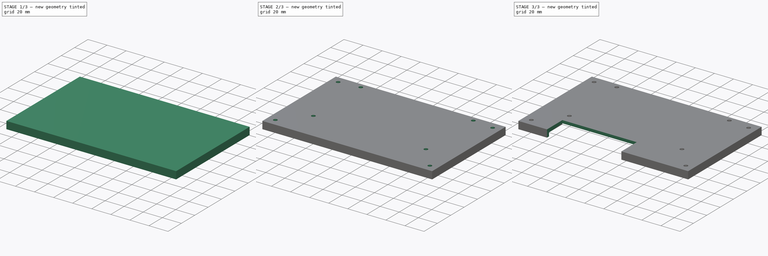
[diagram: build sequence overview — one tinted view per stage of 3, left to right]
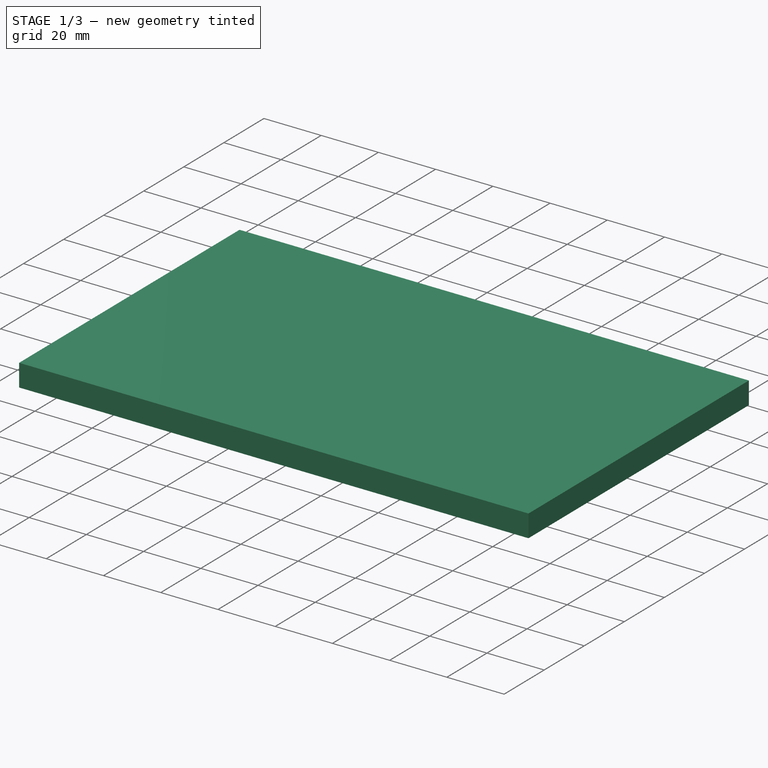
[diagram: stage 1 of 3 — iso view after this stage's code; geometry added in this stage tinted green]
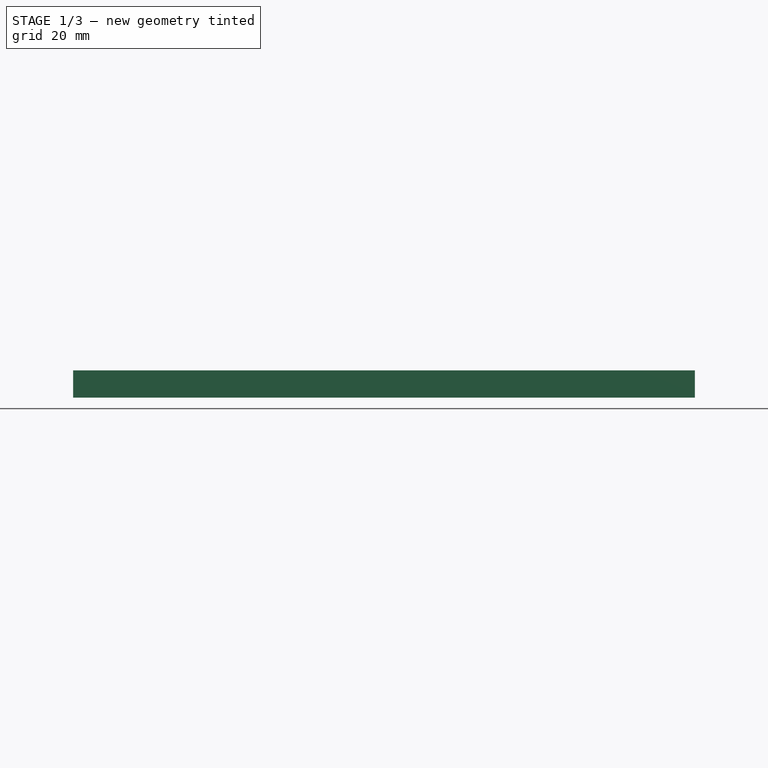
[diagram: stage 1 of 3 — front view after this stage's code; geometry added in this stage tinted green]
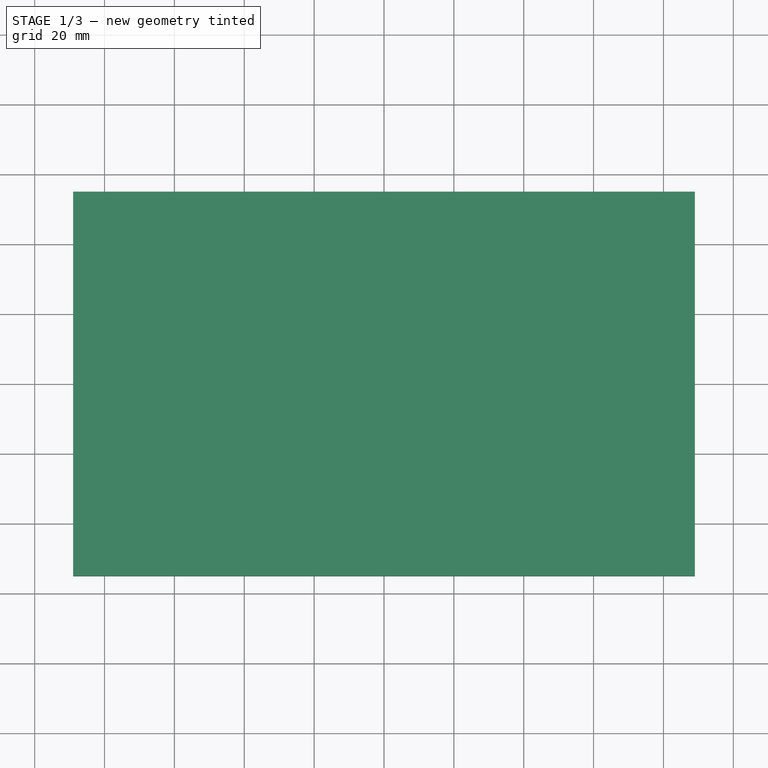
[diagram: stage 1 of 3 — top view after this stage's code; geometry added in this stage tinted green]
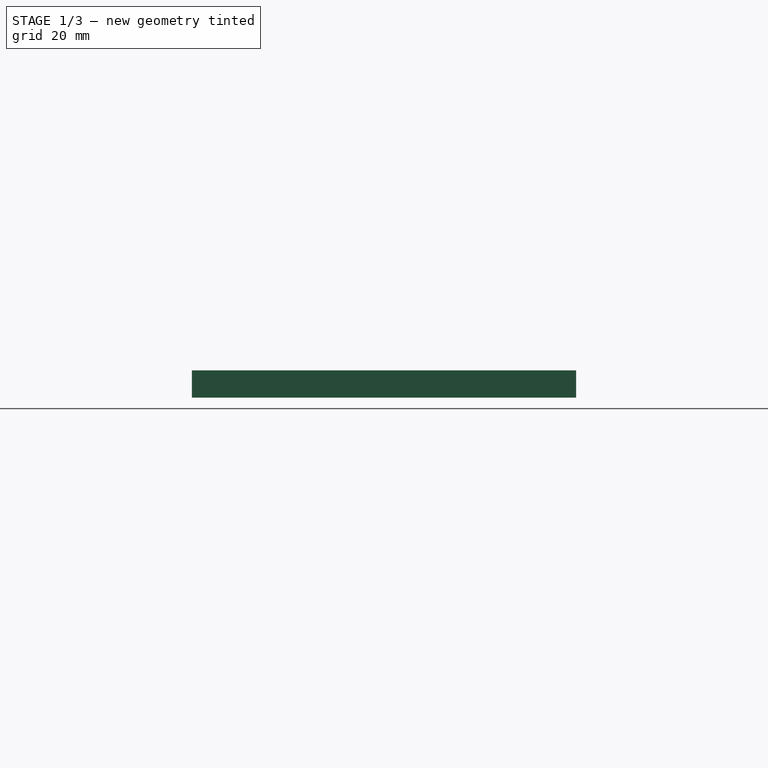
[diagram: stage 1 of 3 — right view after this stage's code; geometry added in this stage tinted green]
FCSTD DOCUMENT  (FreeCAD 0.20R29603 (Git))
Label: screen
License: All rights reserved
LicenseURL: http://en.wikipedia.org/wiki/All_rights_reserved
objects: Sketcher::SketchObject×7, PartDesign::Pocket×4, PartDesign::Pad×2, PartDesign::Body×1
note: 20 computed .brp shape members not serialized (recipe doc carries the construction recipe); baked Part::Feature solids carry a one-line shape summary decoded from their .brp

FEATURE [Sketcher::SketchObject] Sketch
  FullyConstrained = true
  sketch-geometry (8):
    g0: LineSegment StartX=-86 StartY=48 StartZ=0 EndX=82.5 EndY=48 EndZ=0
    g1: LineSegment StartX=82.5 StartY=48 StartZ=0 EndX=82.5 EndY=-52 EndZ=0
    g2: LineSegment StartX=82.5 StartY=-52 StartZ=0 EndX=-86 EndY=-52 EndZ=0
    g3: LineSegment StartX=-86 StartY=-52 StartZ=0 EndX=-86 EndY=48 EndZ=0
    g4: LineSegment StartX=-89 StartY=55 StartZ=0 EndX=89 EndY=55 EndZ=0
    g5: LineSegment StartX=89 StartY=55 StartZ=0 EndX=89 EndY=-55 EndZ=0
    g6: LineSegment StartX=89 StartY=-55 StartZ=0 EndX=-89 EndY=-55 EndZ=0
    g7: LineSegment StartX=-89 StartY=-55 StartZ=0 EndX=-89 EndY=55 EndZ=0
  constraints (23):
    c: Coincident(g0,g1)
    c: Coincident(g2,g3)
    c: Coincident(g3,g0)
    c: Horizontal(g0)
    c: Horizontal(g2)
    c: Vertical(g1)
    c: Vertical(g3)
    c: Coincident(g4,g5)
    c: Coincident(g6,g7)
    c: Coincident(g7,g4)
    c: Horizontal(g4)
    c: Horizontal(g6)
    c: Vertical(g5)
    c: Vertical(g7)
    c: Coincident(g6,g5)
    c: Coincident(g2,g1)
    c: Symmetric(g4,g5,g-1)
    c: DistanceX(g4,g4) = 178
    c: DistanceY(g7,g7) = 110
    c: DistanceY(g6,g2) = 3
    c: DistanceY(g0,g4) = 7
    c: DistanceX(g4,g0) = 3
    c: DistanceX(g0,g4) = 6.5
FEATURE [Sketcher::SketchObject] Sketch001
  FullyConstrained = true
  sketch-geometry (8):
    g0: LineSegment StartX=-86 StartY=48 StartZ=0 EndX=82.5 EndY=48 EndZ=0
    g1: LineSegment StartX=82.5 StartY=48 StartZ=0 EndX=82.5 EndY=-52 EndZ=0
    g2: LineSegment StartX=82.5 StartY=-52 StartZ=0 EndX=-86 EndY=-52 EndZ=0
    g3: LineSegment StartX=-86 StartY=-52 StartZ=0 EndX=-86 EndY=48 EndZ=0
    g4: LineSegment StartX=-89 StartY=55 StartZ=0 EndX=89 EndY=55 EndZ=0
    g5: LineSegment StartX=89 StartY=55 StartZ=0 EndX=89 EndY=-55 EndZ=0
    g6: LineSegment StartX=89 StartY=-55 StartZ=0 EndX=-89 EndY=-55 EndZ=0
    g7: LineSegment StartX=-89 StartY=-55 StartZ=0 EndX=-89 EndY=55 EndZ=0
  constraints (23):
    c: Coincident(g0,g1)
    c: Coincident(g2,g3)
    c: Coincident(g3,g0)
    c: Horizontal(g0)
    c: Horizontal(g2)
    c: Vertical(g1)
    c: Vertical(g3)
    c: Coincident(g4,g5)
    c: Coincident(g6,g7)
    c: Coincident(g7,g4)
    c: Horizontal(g4)
    c: Horizontal(g6)
    c: Vertical(g5)
    c: Vertical(g7)
    c: Coincident(g6,g5)
    c: Coincident(g2,g1)
    c: Symmetric(g4,g5,g-1)
    c: DistanceX(g4,g4) = 178
    c: DistanceY(g7,g7) = 110
    c: DistanceY(g6,g2) = 3
    c: DistanceY(g0,g4) = 7
    c: DistanceX(g4,g0) = 3
    c: DistanceX(g0,g4) = 6.5
FEATURE [PartDesign::Pad] Pad
  Direction = (0,0,1)
  Length = 3.8
  Length2 = 10
  Profile = -> Sketch001
  ReferenceAxis = -> Sketch001 [N_Axis]
  Type = 0
FEATURE [Sketcher::SketchObject] Sketch002
  ExternalGeometry = -> [Pad]
  FullyConstrained = true
  MapMode = 5
  Placement = pos=(0,0,3.8) rot=(0,0,1;0rad)
  Support = -> [Pad]
  sketch-geometry (4):
    g0: LineSegment StartX=-89 StartY=55 StartZ=0 EndX=89 EndY=55 EndZ=0
    g1: LineSegment StartX=89 StartY=55 StartZ=0 EndX=89 EndY=-55 EndZ=0
    g2: LineSegment StartX=89 StartY=-55 StartZ=0 EndX=-89 EndY=-55 EndZ=0
    g3: LineSegment StartX=-89 StartY=-55 StartZ=0 EndX=-89 EndY=55 EndZ=0
  constraints (10):
    c: Coincident(g0,g1)
    c: Coincident(g1,g2)
    c: Coincident(g2,g3)
    c: Coincident(g3,g0)
    c: Horizontal(g0)
    c: Horizontal(g2)
    c: Vertical(g1)
    c: Vertical(g3)
    c: Coincident(g-4,g0)
    c: Coincident(g-6,g1)
FEATURE [PartDesign::Pad] Pad001
  BaseFeature = -> Pad
  Direction = (0,0,1)
  Length = 4
  Length2 = 10
  Profile = -> Sketch002
  ReferenceAxis = -> Sketch002 [N_Axis]
  Type = 0
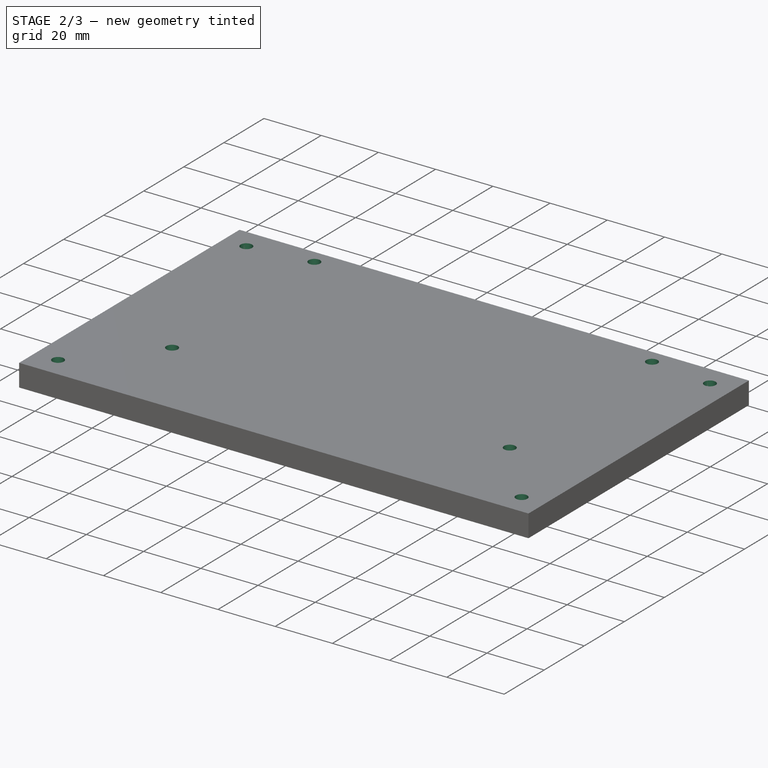
[diagram: stage 2 of 3 — iso view after this stage's code; geometry added in this stage tinted green]
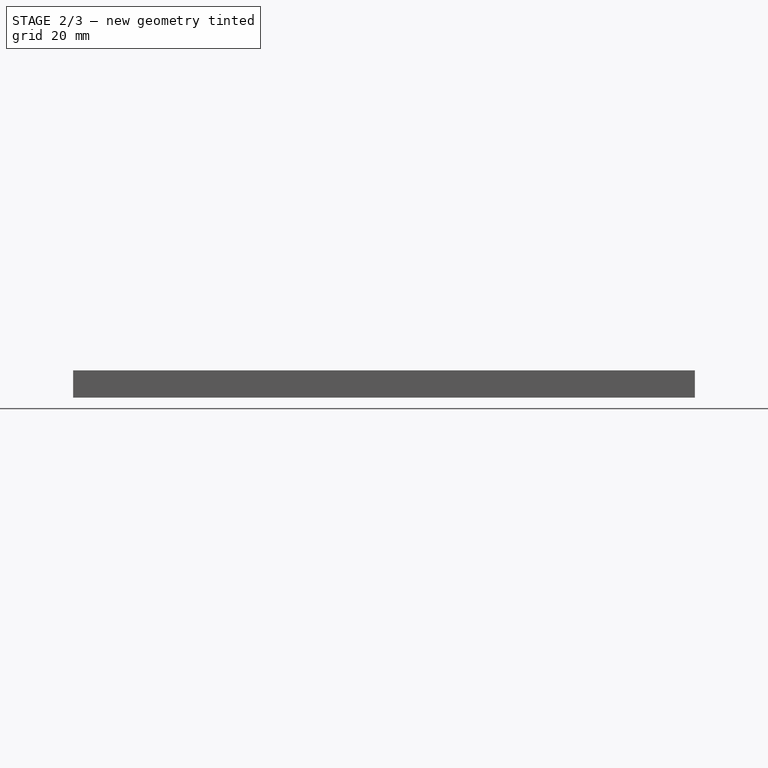
[diagram: stage 2 of 3 — front view after this stage's code; geometry added in this stage tinted green]
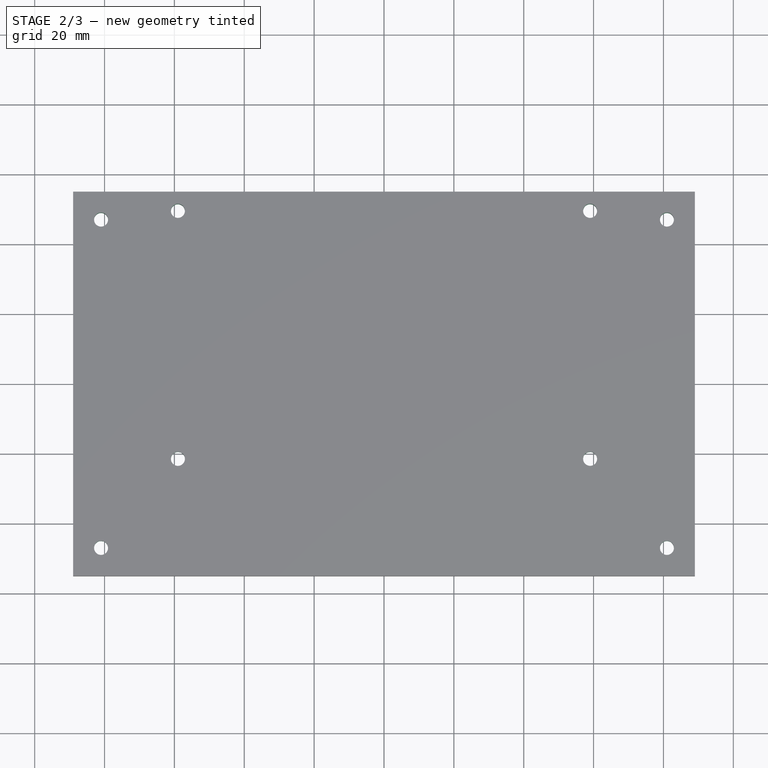
[diagram: stage 2 of 3 — top view after this stage's code; geometry added in this stage tinted green]
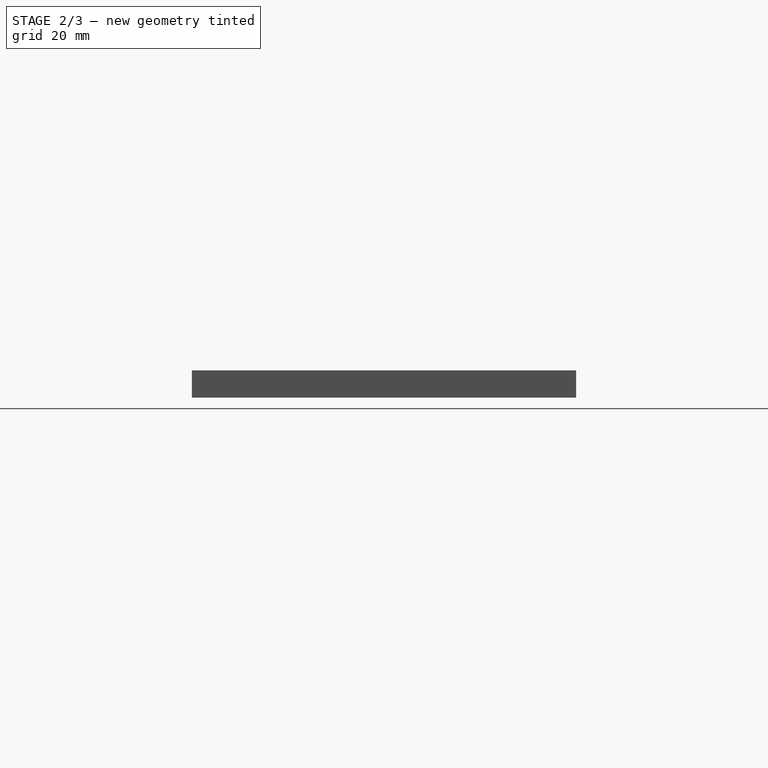
[diagram: stage 2 of 3 — right view after this stage's code; geometry added in this stage tinted green]
FEATURE [Sketcher::SketchObject] Sketch003
  ExternalGeometry = -> [Pad001]
  FullyConstrained = false
  MapMode = 5
  Placement = pos=(0,0,7.8) rot=(0,0,1;0rad)
  Support = -> [Pad001]
  sketch-geometry (9):
    g0: Circle CenterX=-81 CenterY=-47 CenterZ=0 NormalX=0 NormalY=0 NormalZ=1 AngleXU=0 Radius=2
    g1: Circle CenterX=-81 CenterY=47 CenterZ=0 NormalX=0 NormalY=0 NormalZ=1 AngleXU=0 Radius=2
    g2: Circle CenterX=81 CenterY=47 CenterZ=0 NormalX=0 NormalY=0 NormalZ=1 AngleXU=0 Radius=2
    g3: Circle CenterX=81 CenterY=-47 CenterZ=0 NormalX=0 NormalY=0 NormalZ=1 AngleXU=0 Radius=2
    g4: Circle CenterX=-59 CenterY=49.5 CenterZ=0 NormalX=0 NormalY=0 NormalZ=1 AngleXU=0 Radius=2
    g5: Circle CenterX=59 CenterY=49.5 CenterZ=0 NormalX=0 NormalY=0 NormalZ=1 AngleXU=0 Radius=2
    g6: Circle CenterX=-59 CenterY=-21.5 CenterZ=0 NormalX=0 NormalY=0 NormalZ=1 AngleXU=0 Radius=2
    g7: Circle CenterX=59 CenterY=-21.5 CenterZ=0 NormalX=0 NormalY=0 NormalZ=1 AngleXU=0 Radius=2
    g8: GeomPoint X=-59.1979 Y=-27 Z=0
  constraints (28):
    c: Diameter(g0) = 4
    c: DistanceX(g-6,g0) = 8
    c: DistanceY(g-6,g0) = 8
    c: Diameter(g1) = 4
    c: Diameter(g2) = 4
    c: Diameter(g3) = 4
    c: DistanceX(g3,g-6) = 8
    c: DistanceY(g-6,g3) = 8
    c: DistanceX(g2,g-5) = 8
    c: DistanceY(g2,g-5) = 8
    c: DistanceX(g-4,g1) = 8
    c: DistanceY(g1,g-4) = 8
    c: Diameter(g5) = 4
    c: Diameter(g4) = 4
    c: Diameter(g6) = 4
    c: Diameter(g7) = 4
    c: Horizontal(g4,g5)
    c: Horizontal(g6,g7)
    c: Vertical(g6,g4)
    c: Vertical(g5,g7)
    c: DistanceX(g4,g5) = 118
    c: DistanceY(g6,g4) = 71
    c: DistanceY(g4,g-4) = 5.5
    c: DistanceX(g4,g-1) = 59
    c: DistanceY(g-3,g-3) = 110
    c: DistanceY(g-6,g6) = 33.5
    c: DistanceY(g8,g6) = 5.5
    c: DistanceY(g-6,g8) = 28
FEATURE [PartDesign::Pocket] Pocket
  BaseFeature = -> Pad001
  Direction = (0,0,-1)
  Length = 10
  Length2 = 5
  Profile = -> Sketch003
  ReferenceAxis = -> Sketch003 [N_Axis]
  Type = 0
FEATURE [Sketcher::SketchObject] Sketch004
  ExternalGeometry = -> [Sketch]
  FullyConstrained = true
  MapMode = 5
  Placement = pos=(0,0,3.8) rot=(1,0,0;3.14159rad)
  Support = -> [Pad001]
  sketch-geometry (4):
    g0: LineSegment StartX=-86 StartY=-18 StartZ=0 EndX=14 EndY=-18 EndZ=0
    g1: LineSegment StartX=14 StartY=-18 StartZ=0 EndX=14 EndY=17 EndZ=0
    g2: LineSegment StartX=14 StartY=17 StartZ=0 EndX=-86 EndY=17 EndZ=0
    g3: LineSegment StartX=-86 StartY=17 StartZ=0 EndX=-86 EndY=-18 EndZ=0
  constraints (12):
    c: Coincident(g0,g1)
    c: Coincident(g1,g2)
    c: Coincident(g2,g3)
    c: Coincident(g3,g0)
    c: Horizontal(g0)
    c: Horizontal(g2)
    c: Vertical(g1)
    c: Vertical(g3)
    c: DistanceY(g-5,g0) = 30
    c: DistanceX(g2,g2) = 100
    c: DistanceY(g2,g-4) = 35
    c: PointOnObject(g2,g-4)
FEATURE [PartDesign::Pocket] Pocket001
  BaseFeature = -> Pocket
  Direction = (0,0,1)
  Length = 3
  Length2 = 5
  Profile = -> Sketch004
  ReferenceAxis = -> Sketch004 [N_Axis]
  Type = 0
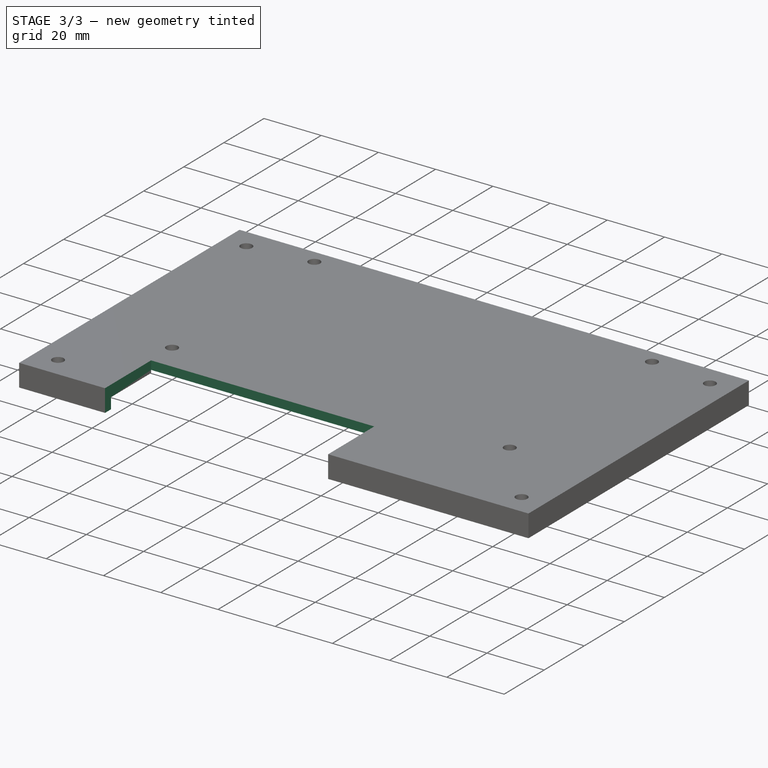
[diagram: stage 3 of 3 — iso view after this stage's code; geometry added in this stage tinted green]
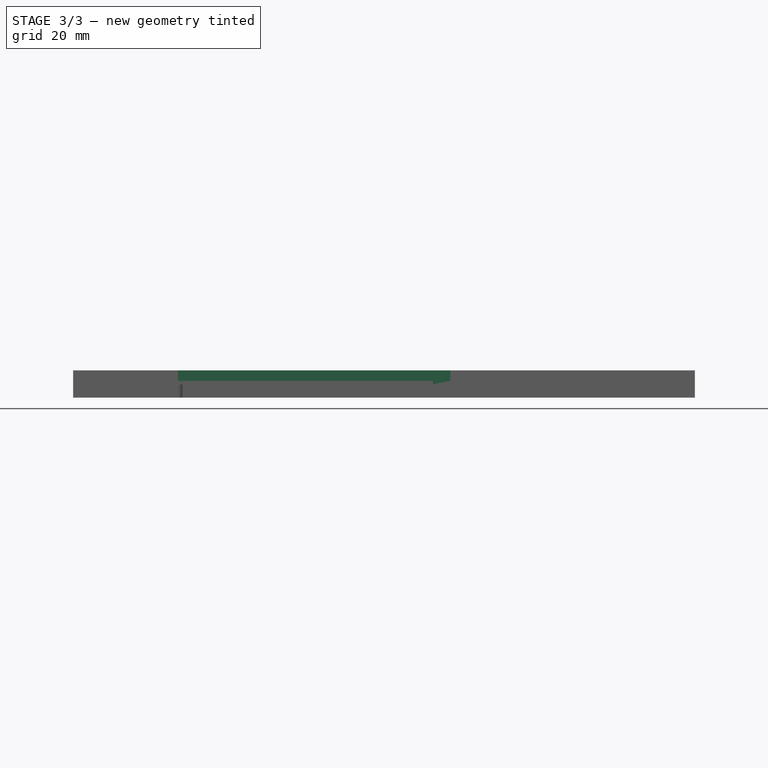
[diagram: stage 3 of 3 — front view after this stage's code; geometry added in this stage tinted green]
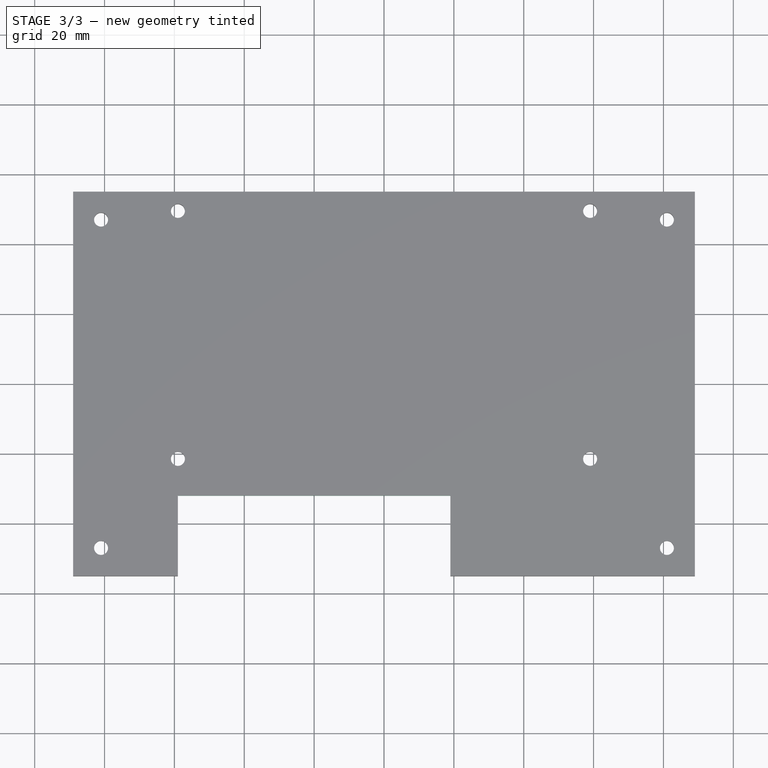
[diagram: stage 3 of 3 — top view after this stage's code; geometry added in this stage tinted green]
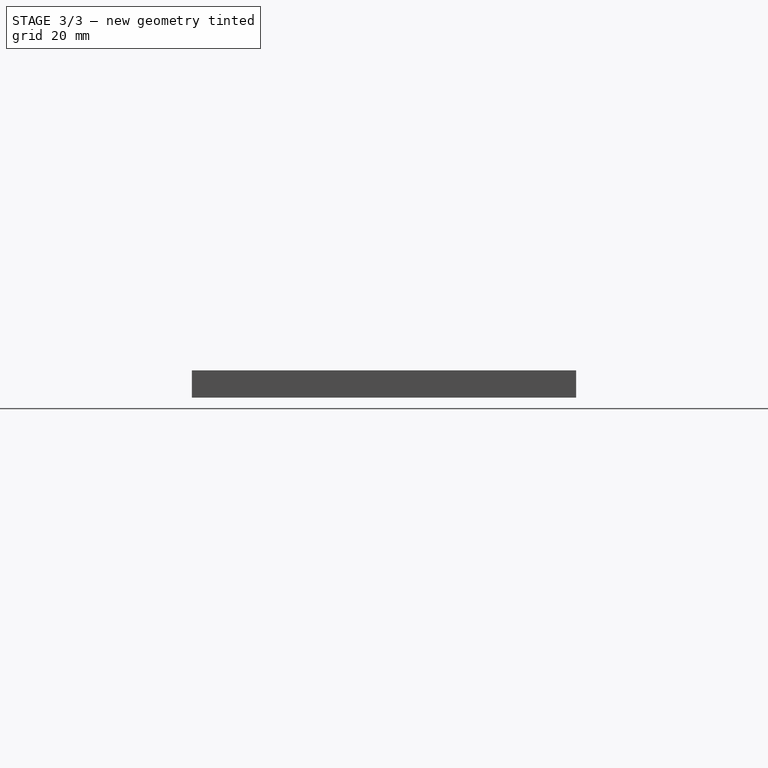
[diagram: stage 3 of 3 — right view after this stage's code; geometry added in this stage tinted green]
FEATURE [Sketcher::SketchObject] Sketch005
  ExternalGeometry = -> [Pocket001,Sketch]
  FullyConstrained = true
  MapMode = 5
  Placement = pos=(0,0,3.8) rot=(1,0,0;3.14159rad)
  Support = -> [Pocket001]
  sketch-geometry (4):
    g0: LineSegment StartX=19 StartY=17 StartZ=0 EndX=-78 EndY=17 EndZ=0
    g1: LineSegment StartX=-78 StartY=17 StartZ=0 EndX=-78 EndY=32 EndZ=0
    g2: LineSegment StartX=-78 StartY=32 StartZ=0 EndX=19 EndY=32 EndZ=0
    g3: LineSegment StartX=19 StartY=32 StartZ=0 EndX=19 EndY=17 EndZ=0
  constraints (12):
    c: DistanceX(g-5,g1) = 8
    c: DistanceY(g1,g-5) = 20
    c: DistanceX(g-5,g3) = 105
    c: Coincident(g2,g3)
    c: Coincident(g2,g1)
    c: Horizontal(g2)
    c: Coincident(g0,g3)
    c: Horizontal(g0)
    c: Vertical(g3)
    c: Coincident(g1,g0)
    c: Vertical(g1)
    c: PointOnObject(g0,g-8)
FEATURE [PartDesign::Pocket] Pocket002
  BaseFeature = -> Pocket001
  Direction = (0,0,1)
  Length = 1
  Length2 = 5
  Profile = -> Sketch005
  ReferenceAxis = -> Sketch005 [N_Axis]
  Type = 0
FEATURE [Sketcher::SketchObject] Sketch006
  ExternalGeometry = -> [Sketch,Pocket002]
  FullyConstrained = true
  MapMode = 5
  Placement = pos=(0,0,7.8) rot=(0,0,1;0rad)
  Support = -> [Pocket002]
  sketch-geometry (4):
    g0: LineSegment StartX=-59 StartY=-32 StartZ=0 EndX=19 EndY=-32 EndZ=0
    g1: LineSegment StartX=19 StartY=-32 StartZ=0 EndX=19 EndY=-55 EndZ=0
    g2: LineSegment StartX=19 StartY=-55 StartZ=0 EndX=-59 EndY=-55 EndZ=0
    g3: LineSegment StartX=-59 StartY=-55 StartZ=0 EndX=-59 EndY=-32 EndZ=0
  constraints (12):
    c: Coincident(g0,g1)
    c: Coincident(g1,g2)
    c: Horizontal(g2)
    c: PointOnObject(g2,g-6)
    c: DistanceX(g-6,g0) = 30
    c: DistanceX(g-6,g0) = 108
    c: Horizontal(g0)
    c: Coincident(g0,g-7)
    c: Vertical(g1)
    c: Coincident(g3,g2)
    c: Coincident(g3,g0)
    c: Vertical(g3)
FEATURE [PartDesign::Pocket] Pocket003
  BaseFeature = -> Pocket002
  Direction = (0,0,-1)
  Length = 10
  Length2 = 5
  Profile = -> Sketch006
  ReferenceAxis = -> Sketch006 [N_Axis]
  Type = 0
FEATURE [PartDesign::Body] Body001  label="Display_case"
  Group = -> [Sketch,Sketch001,Pad,Sketch002,Pad001,Sketch003,Pocket,Sketch004,Pocket001,Sketch005,Pocket002,Sketch006,Pocket003]
  Origin = -> Origin001
  Tip = -> Pocket003
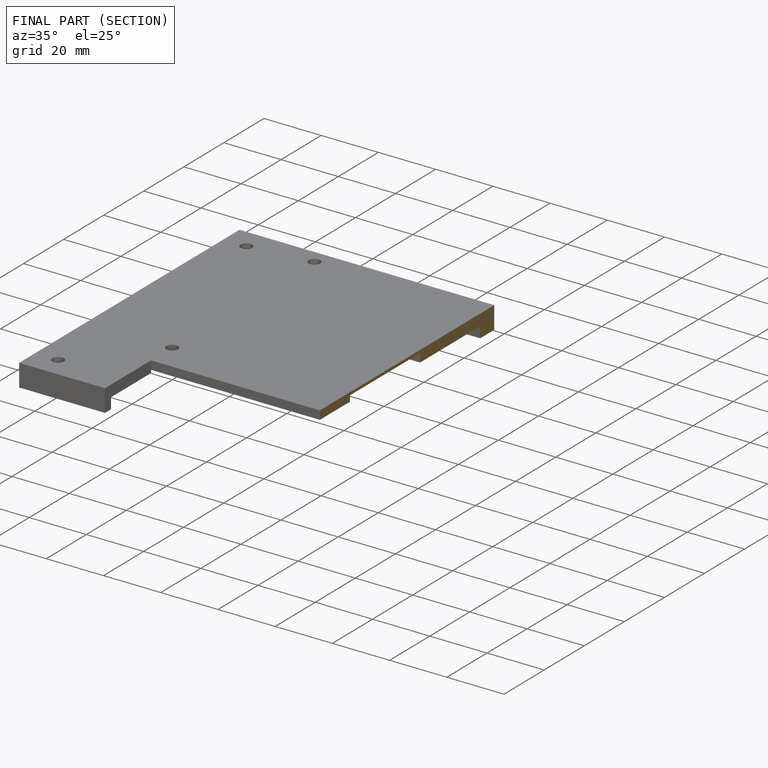
[diagram: finished part — half-section view (interior)]
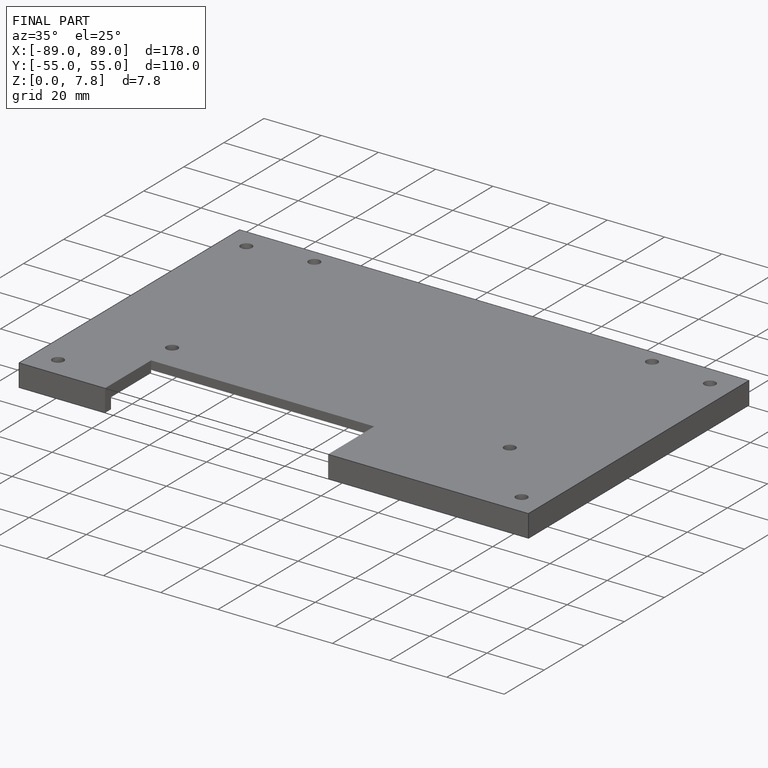
[diagram: finished part — iso view with bounding-box wireframe]
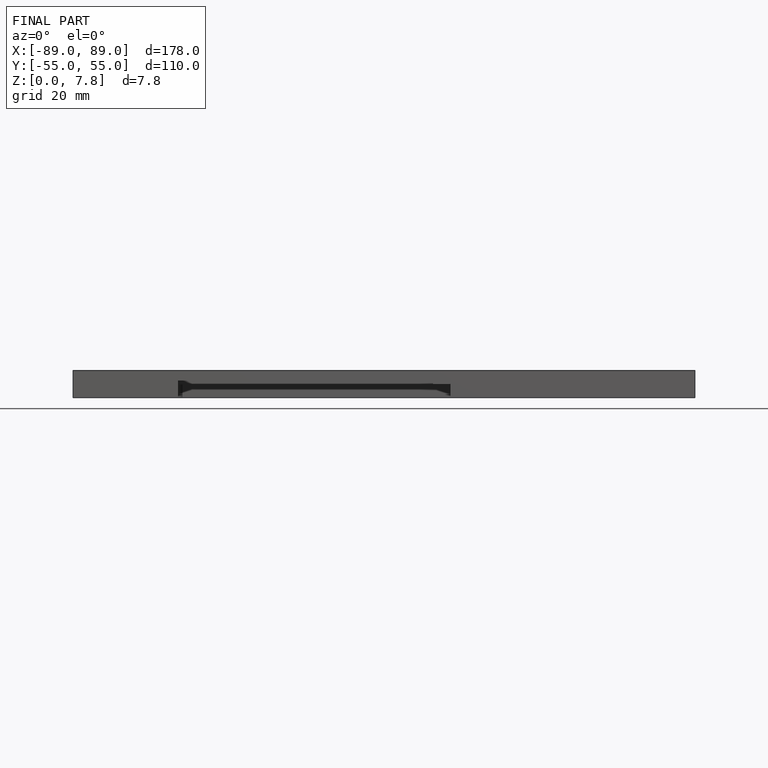
[diagram: finished part — front view with bounding-box wireframe]
